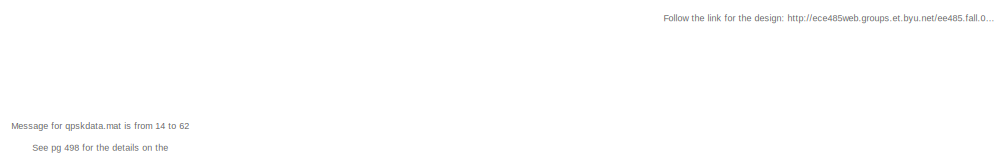
[diagram: root canvas - part 1/3, top left region]
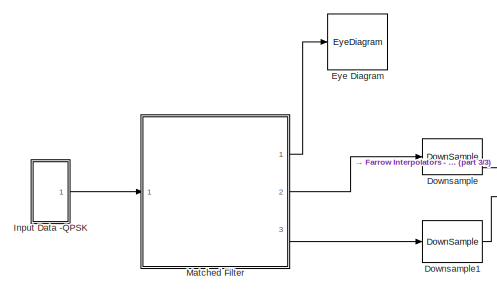
[diagram: root canvas - part 2/3, middle left region]
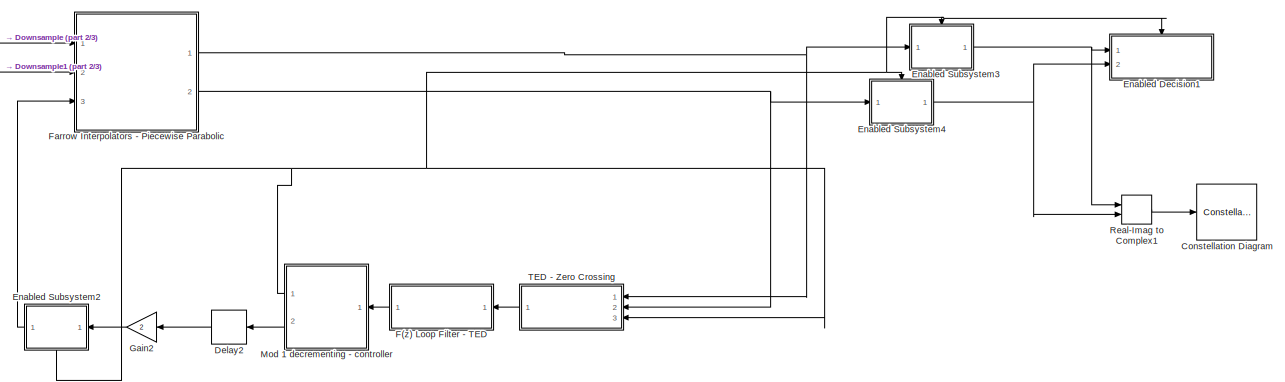
[diagram: root canvas - part 3/3, bottom center region]
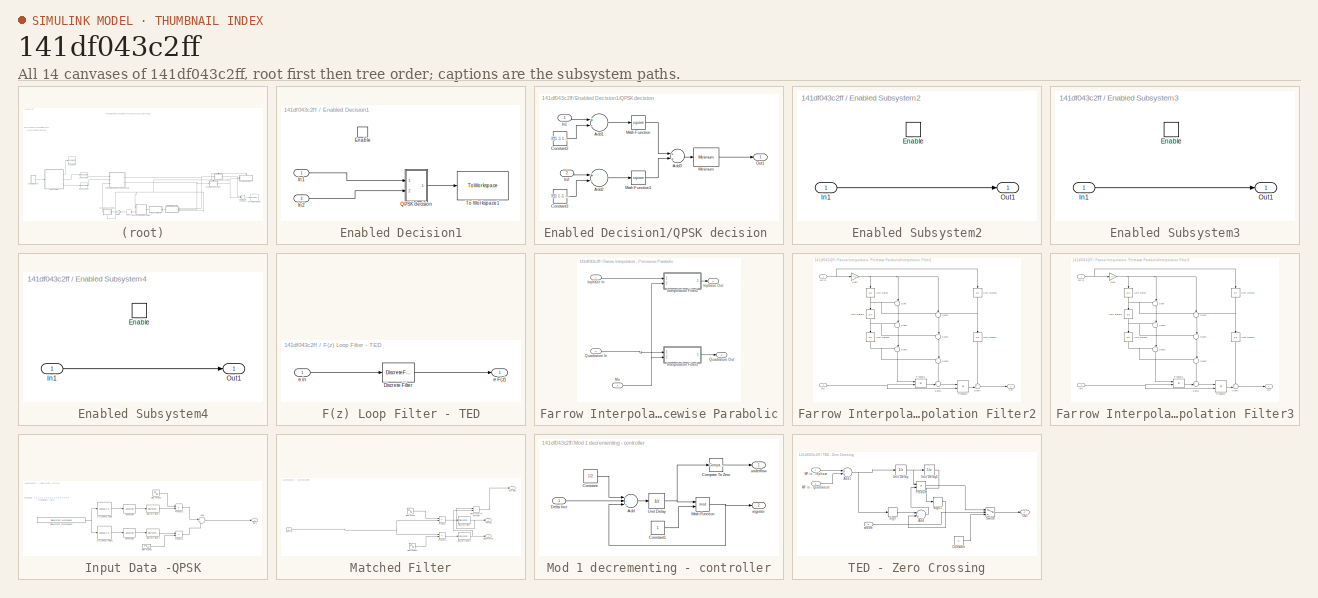
[diagram: thumbnail index - all 14 canvases of the model, root first then tree order]
MODEL slx_141df043c2ff
KIND model
CONFIG AbsTol = auto
CONFIG EnableMultiTasking = on
CONFIG FixedStep = auto
CONFIG MaxStep = auto
CONFIG MinStep = auto
CONFIG RelTol = 1e-3
CONFIG SampleTimeConstraint = Unconstrained
CONFIG Solver = VariableStepAuto
CONFIG SolverName = VariableStepAuto
CONFIG StartTime = 0.0
CONFIG StopTime = (12+133)*8
BLOCK [ConstellationDiagram] Constellation Diagram
  Ports = [1]
  ScopeSpecificationString = comm.scopes.ConstellationDiagramBlockCfg('CurrentConfiguration', extmgr.ConfigurationSet(extmgr.Configuration('Core','General UI',true),extmgr.Configuration('Core','Source UI',true),extmgr.Configuration('Sources','WiredSimulink',true),extmgr.Configuration('Sources','File',false),extmgr.Configuration('Sources','SPTool',false),extmgr.Configuration('Sources','Workspace',false),extmgr.Configuration('S...<+2266ch>
BLOCK [Delay] Delay2
  DelayLength = 1
  InputPortMap = u0
  Ports = [1, 1]
BLOCK [DownSample] Downsample
  InputProcessing = Inherited (this choice will be removed - see release notes)
  N = 16/2
  RateOptions = Allow multirate processing
  phase = 7
BLOCK [DownSample] Downsample1
  InputProcessing = Inherited (this choice will be removed - see release notes)
  N = 16/2
  RateOptions = Allow multirate processing
  phase = 7
BLOCK [SubSystem] Enabled Decision1
  Ports = [2, 0, 1]
  RequestExecContextInheritance = off
  TreatAsAtomicUnit = on
  Variant = off
BLOCK [EnablePort] Enabled Decision1/Enable
  Ports = []
BLOCK [Inport] Enabled Decision1/In1
  IconDisplay = Port number
BLOCK [Inport] Enabled Decision1/In2
  IconDisplay = Port number
  Port = 2
BLOCK [SubSystem] Enabled Decision1/QPSK decision 
  Ports = [2, 1]
  RequestExecContextInheritance = off
  Variant = off
BLOCK [Sum] Enabled Decision1/QPSK decision /Add1
  InputSameDT = off
  Inputs = +-
  OutDataTypeStr = Inherit: Inherit via internal rule
  Ports = [2, 1]
  SaturateOnIntegerOverflow = off
BLOCK [Sum] Enabled Decision1/QPSK decision /Add2
  InputSameDT = off
  Inputs = +-
  OutDataTypeStr = Inherit: Inherit via internal rule
  Ports = [2, 1]
  SaturateOnIntegerOverflow = off
BLOCK [Sum] Enabled Decision1/QPSK decision /Add3
  InputSameDT = off
  OutDataTypeStr = Inherit: Inherit via internal rule
  Ports = [2, 1]
  SaturateOnIntegerOverflow = off
BLOCK [Constant] Enabled Decision1/QPSK decision /Constant2
  Value = 3*[1 -1 1 -1] /sqrt(2)
BLOCK [Constant] Enabled Decision1/QPSK decision /Constant3
  Value = 3*[1 1 -1 -1] /sqrt(2)
BLOCK [Inport] Enabled Decision1/QPSK decision /In1
  IconDisplay = Port number
BLOCK [Inport] Enabled Decision1/QPSK decision /In2
  IconDisplay = Port number
  Port = 2
BLOCK [Math] Enabled Decision1/QPSK decision /Math Function
  Operator = square
  Ports = [1, 1]
BLOCK [Math] Enabled Decision1/QPSK decision /Math Function1
  Operator = square
  Ports = [1, 1]
BLOCK [Reference] Enabled Decision1/QPSK decision /Minimum  REF=dspstat3/Minimum
  Ports = [1, 1]
  SourceBlock = dspstat3/Minimum
  SourceType = Minimum
  UserDataPersistent = on
BLOCK [Outport] Enabled Decision1/QPSK decision /Out1
  IconDisplay = Port number
BLOCK [ToWorkspace] Enabled Decision1/To Workspace1
  FixptAsFi = on
  MaxDataPoints = inf
  Ports = [1]
  SampleTime = -1
  Save2DSignal = 2-D array (concatenate along first dimension)
  VariableName = QPSKbitsT1
BLOCK [SubSystem] Enabled Subsystem2
  Ports = [1, 1, 1]
  RequestExecContextInheritance = off
  TreatAsAtomicUnit = on
  Variant = off
BLOCK [EnablePort] Enabled Subsystem2/Enable
  Ports = []
BLOCK [Inport] Enabled Subsystem2/In1
  IconDisplay = Port number
BLOCK [Outport] Enabled Subsystem2/Out1
  IconDisplay = Port number
BLOCK [SubSystem] Enabled Subsystem3
  Ports = [1, 1, 1]
  RequestExecContextInheritance = off
  TreatAsAtomicUnit = on
  Variant = off
BLOCK [EnablePort] Enabled Subsystem3/Enable
  Ports = []
BLOCK [Inport] Enabled Subsystem3/In1
  IconDisplay = Port number
BLOCK [Outport] Enabled Subsystem3/Out1
  IconDisplay = Port number
BLOCK [SubSystem] Enabled Subsystem4
  Ports = [1, 1, 1]
  RequestExecContextInheritance = off
  TreatAsAtomicUnit = on
  Variant = off
BLOCK [EnablePort] Enabled Subsystem4/Enable
  Ports = []
BLOCK [Inport] Enabled Subsystem4/In1
  IconDisplay = Port number
BLOCK [Outport] Enabled Subsystem4/Out1
  IconDisplay = Port number
BLOCK [EyeDiagram] Eye Diagram
  Ports = [1]
  ScopeSpecificationString = comm.scopes.EyeDiagramBlockCfg('CurrentConfiguration', extmgr.ConfigurationSet(extmgr.Configuration('Core','General UI',true),extmgr.Configuration('Core','Source UI',true),extmgr.Configuration('Sources','WiredSimulink',true),extmgr.Configuration('Sources','File',false),extmgr.Configuration('Sources','Streaming',false),extmgr.Configuration('Sources','SPTool',false),extmgr.Configuration('Sources','W...<+1878ch>
BLOCK [SubSystem] F(z) Loop Filter - TED
  Ports = [1, 1]
  RequestExecContextInheritance = off
  Variant = off
BLOCK [DiscreteFilter] F(z) Loop Filter - TED/Discrete Filter
  Denominator = [1 -1]
  InputPortMap = u0
  Numerator = [(K1+K2) -K1]
  Ports = [1, 1]
BLOCK [Outport] F(z) Loop Filter - TED/e F(z)
  IconDisplay = Port number
BLOCK [Inport] F(z) Loop Filter - TED/e in
  IconDisplay = Port number
BLOCK [SubSystem] Farrow Interpolators - Piecewise Parabolic
  Ports = [3, 2]
  RequestExecContextInheritance = off
  Variant = off
BLOCK [Inport] Farrow Interpolators - Piecewise Parabolic/Inphase In
  IconDisplay = Port number
BLOCK [Outport] Farrow Interpolators - Piecewise Parabolic/Inphase Out
  IconDisplay = Port number
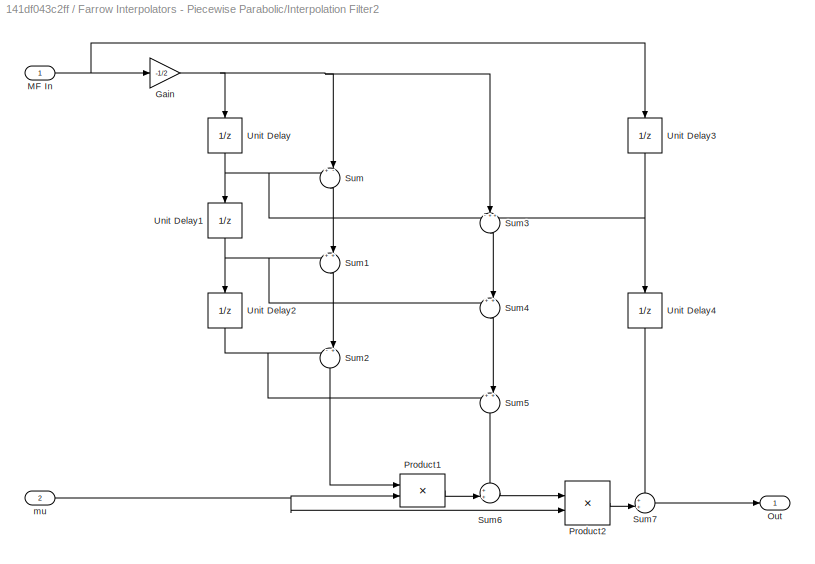
BLOCK [SubSystem] Farrow Interpolators - Piecewise Parabolic/Interpolation Filter2
  Ports = [2, 1]
  RequestExecContextInheritance = off
  Variant = off
BLOCK [Gain] Farrow Interpolators - Piecewise Parabolic/Interpolation Filter2/Gain
  Gain = -1/2
  OutDataTypeStr = Inherit: Inherit via internal rule
  ParamDataTypeStr = Inherit: Inherit via internal rule
  SaturateOnIntegerOverflow = off
BLOCK [Inport] Farrow Interpolators - Piecewise Parabolic/Interpolation Filter2/MF In
  IconDisplay = Port number
BLOCK [Outport] Farrow Interpolators - Piecewise Parabolic/Interpolation Filter2/Out
  IconDisplay = Port number
BLOCK [Product] Farrow Interpolators - Piecewise Parabolic/Interpolation Filter2/Product1
  Ports = [2, 1]
  RndMeth = Floor
BLOCK [Product] Farrow Interpolators - Piecewise Parabolic/Interpolation Filter2/Product2
  Ports = [2, 1]
  RndMeth = Floor
BLOCK [Sum] Farrow Interpolators - Piecewise Parabolic/Interpolation Filter2/Sum
  IconShape = round
  Inputs = +-|
  Ports = [2, 1]
BLOCK [Sum] Farrow Interpolators - Piecewise Parabolic/Interpolation Filter2/Sum1
  IconShape = round
  Inputs = ++|
  Ports = [2, 1]
BLOCK [Sum] Farrow Interpolators - Piecewise Parabolic/Interpolation Filter2/Sum2
  IconShape = round
  Inputs = -+|
  Ports = [2, 1]
BLOCK [Sum] Farrow Interpolators - Piecewise Parabolic/Interpolation Filter2/Sum3
  IconShape = round
  Inputs = -++
  Ports = [3, 1]
BLOCK [Sum] Farrow Interpolators - Piecewise Parabolic/Interpolation Filter2/Sum4
  IconShape = round
  Inputs = ++|
  Ports = [2, 1]
BLOCK [Sum] Farrow Interpolators - Piecewise Parabolic/Interpolation Filter2/Sum5
  IconShape = round
  Inputs = ++|
  Ports = [2, 1]
BLOCK [Sum] Farrow Interpolators - Piecewise Parabolic/Interpolation Filter2/Sum6
  IconShape = round
  Inputs = ++|
  Ports = [2, 1]
BLOCK [Sum] Farrow Interpolators - Piecewise Parabolic/Interpolation Filter2/Sum7
  IconShape = round
  Inputs = ++|
  Ports = [2, 1]
BLOCK [UnitDelay] Farrow Interpolators - Piecewise Parabolic/Interpolation Filter2/Unit Delay
  InputProcessing = Elements as channels (sample based)
  SampleTime = -1
BLOCK [UnitDelay] Farrow Interpolators - Piecewise Parabolic/Interpolation Filter2/Unit Delay1
  InputProcessing = Elements as channels (sample based)
  SampleTime = -1
BLOCK [UnitDelay] Farrow Interpolators - Piecewise Parabolic/Interpolation Filter2/Unit Delay2
  InputProcessing = Elements as channels (sample based)
  SampleTime = -1
BLOCK [UnitDelay] Farrow Interpolators - Piecewise Parabolic/Interpolation Filter2/Unit Delay3
  InputProcessing = Elements as channels (sample based)
  SampleTime = -1
BLOCK [UnitDelay] Farrow Interpolators - Piecewise Parabolic/Interpolation Filter2/Unit Delay4
  InputProcessing = Elements as channels (sample based)
  SampleTime = -1
BLOCK [Inport] Farrow Interpolators - Piecewise Parabolic/Interpolation Filter2/mu
  IconDisplay = Port number
  Port = 2
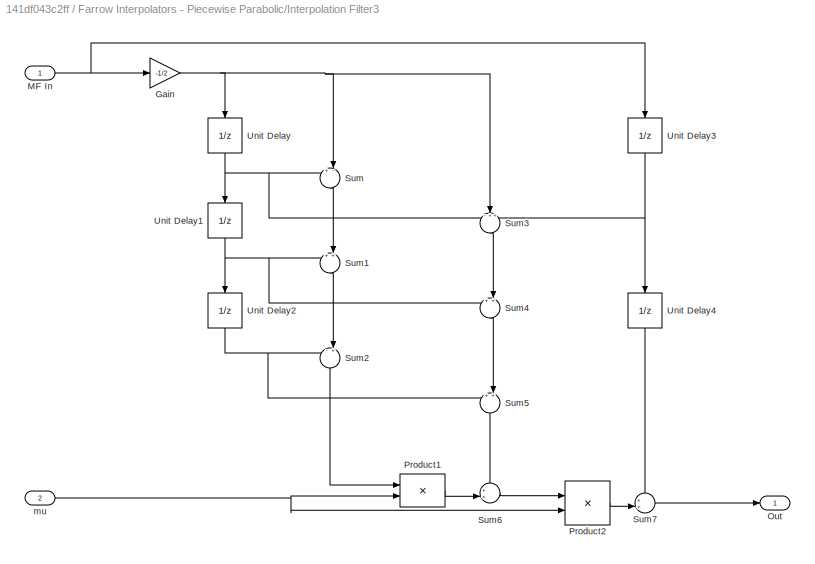
BLOCK [SubSystem] Farrow Interpolators - Piecewise Parabolic/Interpolation Filter3
  Ports = [2, 1]
  RequestExecContextInheritance = off
  Variant = off
BLOCK [Gain] Farrow Interpolators - Piecewise Parabolic/Interpolation Filter3/Gain
  Gain = -1/2
  OutDataTypeStr = Inherit: Inherit via internal rule
  ParamDataTypeStr = Inherit: Inherit via internal rule
  SaturateOnIntegerOverflow = off
BLOCK [Inport] Farrow Interpolators - Piecewise Parabolic/Interpolation Filter3/MF In
  IconDisplay = Port number
BLOCK [Outport] Farrow Interpolators - Piecewise Parabolic/Interpolation Filter3/Out
  IconDisplay = Port number
BLOCK [Product] Farrow Interpolators - Piecewise Parabolic/Interpolation Filter3/Product1
  Ports = [2, 1]
  RndMeth = Floor
BLOCK [Product] Farrow Interpolators - Piecewise Parabolic/Interpolation Filter3/Product2
  Ports = [2, 1]
  RndMeth = Floor
BLOCK [Sum] Farrow Interpolators - Piecewise Parabolic/Interpolation Filter3/Sum
  IconShape = round
  Inputs = +-|
  Ports = [2, 1]
BLOCK [Sum] Farrow Interpolators - Piecewise Parabolic/Interpolation Filter3/Sum1
  IconShape = round
  Inputs = ++|
  Ports = [2, 1]
BLOCK [Sum] Farrow Interpolators - Piecewise Parabolic/Interpolation Filter3/Sum2
  IconShape = round
  Inputs = -+|
  Ports = [2, 1]
BLOCK [Sum] Farrow Interpolators - Piecewise Parabolic/Interpolation Filter3/Sum3
  IconShape = round
  Inputs = -++
  Ports = [3, 1]
BLOCK [Sum] Farrow Interpolators - Piecewise Parabolic/Interpolation Filter3/Sum4
  IconShape = round
  Inputs = ++|
  Ports = [2, 1]
BLOCK [Sum] Farrow Interpolators - Piecewise Parabolic/Interpolation Filter3/Sum5
  IconShape = round
  Inputs = ++|
  Ports = [2, 1]
BLOCK [Sum] Farrow Interpolators - Piecewise Parabolic/Interpolation Filter3/Sum6
  IconShape = round
  Inputs = ++|
  Ports = [2, 1]
BLOCK [Sum] Farrow Interpolators - Piecewise Parabolic/Interpolation Filter3/Sum7
  IconShape = round
  Inputs = ++|
  Ports = [2, 1]
BLOCK [UnitDelay] Farrow Interpolators - Piecewise Parabolic/Interpolation Filter3/Unit Delay
  InputProcessing = Elements as channels (sample based)
  SampleTime = -1
BLOCK [UnitDelay] Farrow Interpolators - Piecewise Parabolic/Interpolation Filter3/Unit Delay1
  InputProcessing = Elements as channels (sample based)
  SampleTime = -1
BLOCK [UnitDelay] Farrow Interpolators - Piecewise Parabolic/Interpolation Filter3/Unit Delay2
  InputProcessing = Elements as channels (sample based)
  SampleTime = -1
BLOCK [UnitDelay] Farrow Interpolators - Piecewise Parabolic/Interpolation Filter3/Unit Delay3
  InputProcessing = Elements as channels (sample based)
  SampleTime = -1
BLOCK [UnitDelay] Farrow Interpolators - Piecewise Parabolic/Interpolation Filter3/Unit Delay4
  InputProcessing = Elements as channels (sample based)
  SampleTime = -1
BLOCK [Inport] Farrow Interpolators - Piecewise Parabolic/Interpolation Filter3/mu
  IconDisplay = Port number
  Port = 2
BLOCK [Inport] Farrow Interpolators - Piecewise Parabolic/Mu
  IconDisplay = Port number
  Port = 3
BLOCK [Inport] Farrow Interpolators - Piecewise Parabolic/Quadrature In
  IconDisplay = Port number
  Port = 2
BLOCK [Outport] Farrow Interpolators - Piecewise Parabolic/Quadrature Out
  IconDisplay = Port number
  Port = 2
BLOCK [Gain] Gain2
  Gain = 2
  OutDataTypeStr = Inherit: Inherit via internal rule
  ParamDataTypeStr = Inherit: Inherit via internal rule
  SaturateOnIntegerOverflow = off
BLOCK [SubSystem] Input Data -QPSK
  Ports = [0, 1]
  RequestExecContextInheritance = off
  Variant = off
BLOCK [Lookup_n-D] Input Data -QPSK/1-D Lookup Table
  BreakpointsForDimension1 = [0 1 2 3]
  InternalRulePriority = Speed
  NumberOfTableDimensions = 1
  Ports = [1, 1]
  RndMeth = Simplest
  Table = [1 -1 1 -1]*3/sqrt(2)
BLOCK [Lookup_n-D] Input Data -QPSK/1-D Lookup Table2
  BreakpointsForDimension1 = [0 1 2 3]
  InternalRulePriority = Speed
  NumberOfTableDimensions = 1
  Ports = [1, 1]
  RndMeth = Simplest
  Table = [1 1 -1 -1]*3/sqrt(2)
BLOCK [Sum] Input Data -QPSK/Add1
  IconShape = round
  InputSameDT = off
  OutDataTypeStr = Inherit: Inherit via internal rule
  Ports = [2, 1]
  SaturateOnIntegerOverflow = off
BLOCK [DiscreteFilter] Input Data -QPSK/Discrete Filter2
  Denominator = [1]
  InputPortMap = u0
  Numerator = rcosine(1,8,'fir/sqrt',0.5,6)
  Ports = [1, 1]
BLOCK [DiscreteFilter] Input Data -QPSK/Discrete Filter3
  Denominator = [1]
  InputPortMap = u0
  Numerator = rcosine(1,8,'fir/sqrt',0.5,6)
  Ports = [1, 1]
BLOCK [Outport] Input Data -QPSK/Out1
  IconDisplay = Port number
BLOCK [Product] Input Data -QPSK/Product2
  InputSameDT = off
  OutDataTypeStr = Inherit: Inherit via internal rule
  Ports = [2, 1]
  RndMeth = Floor
  SaturateOnIntegerOverflow = off
BLOCK [Product] Input Data -QPSK/Product3
  InputSameDT = off
  OutDataTypeStr = Inherit: Inherit via internal rule
  Ports = [2, 1]
  RndMeth = Floor
  SaturateOnIntegerOverflow = off
BLOCK [Reference] Input Data -QPSK/Signal From Workspace1  REF=dspsrcs4/Signal From
Workspace
  Ports = [0, 1]
  SourceBlock = dspsrcs4/Signal From\nWorkspace
  SourceType = Signal From Workspace
BLOCK [Sin] Input Data -QPSK/Sine Wave2
  Amplitude = sqrt(2)
  Frequency = 2*pi/4
  Phase = pi/2
  Ports = [0, 1]
  SampleTime = .5
BLOCK [Sin] Input Data -QPSK/Sine Wave3
  Amplitude = -sqrt(2)
  Frequency = 2*pi/4
  Ports = [0, 1]
  SampleTime = .5
BLOCK [Reference] Input Data -QPSK/Upsample  REF=dspsigops/Upsample
  Ports = [1, 1]
  SourceBlock = dspsigops/Upsample
  SourceType = Upsample
  UserDataPersistent = on
BLOCK [Reference] Input Data -QPSK/Upsample1  REF=dspsigops/Upsample
  Ports = [1, 1]
  SourceBlock = dspsigops/Upsample
  SourceType = Upsample
  UserDataPersistent = on
BLOCK [SubSystem] Matched Filter
  Ports = [1, 3]
  RequestExecContextInheritance = off
  Variant = off
BLOCK [DiscreteFilter] Matched Filter/Discrete Filter
  Denominator = [1]
  InputPortMap = u0
  Numerator = rcosine(1,8,'fir/sqrt',0.5,6)
  Ports = [1, 1]
BLOCK [DiscreteFilter] Matched Filter/Discrete Filter1
  Denominator = [1]
  InputPortMap = u0
  Numerator = rcosine(1,8,'fir/sqrt',0.5,6)
  Ports = [1, 1]
BLOCK [Outport] Matched Filter/Eye Diag
  IconDisplay = Port number
BLOCK [Outport] Matched Filter/Inphase
  IconDisplay = Port number
  Port = 2
BLOCK [Inport] Matched Filter/MF In
  IconDisplay = Port number
BLOCK [Product] Matched Filter/Product
  InputSameDT = off
  OutDataTypeStr = Inherit: Inherit via internal rule
  Ports = [2, 1]
  RndMeth = Floor
  SaturateOnIntegerOverflow = off
BLOCK [Product] Matched Filter/Product1
  InputSameDT = off
  OutDataTypeStr = Inherit: Inherit via internal rule
  Ports = [2, 1]
  RndMeth = Floor
  SaturateOnIntegerOverflow = off
BLOCK [Outport] Matched Filter/Quadrature
  IconDisplay = Port number
  Port = 3
BLOCK [RealImagToComplex] Matched Filter/Real-Imag to Complex
  Ports = [2, 1]
BLOCK [Sin] Matched Filter/Sine Wave
  Amplitude = sqrt(2)
  Frequency = 2*pi/4
  Phase = pi/2
  Ports = [0, 1]
  SampleTime = .5
BLOCK [Sin] Matched Filter/Sine Wave1
  Amplitude = -sqrt(2)
  Frequency = 2*pi/4
  Ports = [0, 1]
  SampleTime = .5
BLOCK [SubSystem] Mod 1 decrementing - controller
  Ports = [1, 2]
  RequestExecContextInheritance = off
  Variant = off
BLOCK [Sum] Mod 1 decrementing - controller/Add
  InputSameDT = off
  Inputs = --+
  OutDataTypeStr = Inherit: Inherit via internal rule
  Ports = [3, 1]
  SaturateOnIntegerOverflow = off
BLOCK [Reference] Mod 1 decrementing - controller/Compare To Zero  REF=simulink/Logic and Bit
Operations/Compare
To Zero
  Ports = [1, 1]
  SourceBlock = simulink/Logic and Bit\nOperations/Compare\nTo Zero
  SourceType = Compare To Zero
BLOCK [Constant] Mod 1 decrementing - controller/Constant
  Value = 1/2
BLOCK [Constant] Mod 1 decrementing - controller/Constant1
BLOCK [Inport] Mod 1 decrementing - controller/Delta Incr
  IconDisplay = Port number
BLOCK [Math] Mod 1 decrementing - controller/Math Function
  Operator = mod
  Ports = [2, 1]
BLOCK [UnitDelay] Mod 1 decrementing - controller/Unit Delay
  InputProcessing = Elements as channels (sample based)
  SampleTime = -1
BLOCK [Outport] Mod 1 decrementing - controller/register
  IconDisplay = Port number
  Port = 2
BLOCK [Outport] Mod 1 decrementing - controller/underflow
  IconDisplay = Port number
BLOCK [RealImagToComplex] Real-Imag to Complex1
  Ports = [2, 1]
BLOCK [SubSystem] TED - Zero Crossing
  Ports = [3, 1]
  RequestExecContextInheritance = off
  Variant = off
BLOCK [Sum] TED - Zero Crossing/Add
  InputSameDT = off
  Inputs = -+
  OutDataTypeStr = Inherit: Inherit via internal rule
  Ports = [2, 1]
  SaturateOnIntegerOverflow = off
BLOCK [Sum] TED - Zero Crossing/Add1
  InputSameDT = off
  OutDataTypeStr = Inherit: Inherit via internal rule
  Ports = [2, 1]
  SaturateOnIntegerOverflow = off
BLOCK [Constant] TED - Zero Crossing/Constant
  Value = 0
BLOCK [Inport] TED - Zero Crossing/MF in - Inphase
  IconDisplay = Port number
BLOCK [Inport] TED - Zero Crossing/MF in - Quadrature
  IconDisplay = Port number
  Port = 2
BLOCK [Outport] TED - Zero Crossing/Out
  IconDisplay = Port number
BLOCK [Product] TED - Zero Crossing/Product
  InputSameDT = off
  OutDataTypeStr = Inherit: Inherit via internal rule
  Ports = [2, 1]
  RndMeth = Floor
  SaturateOnIntegerOverflow = off
BLOCK [Signum] TED - Zero Crossing/Sign
BLOCK [Signum] TED - Zero Crossing/Sign1
BLOCK [Switch] TED - Zero Crossing/Switch
  InputSameDT = off
  Threshold = 0.5
BLOCK [UnitDelay] TED - Zero Crossing/Unit Delay
  InputProcessing = Elements as channels (sample based)
  SampleTime = -1
BLOCK [UnitDelay] TED - Zero Crossing/Unit Delay1
  InputProcessing = Elements as channels (sample based)
  SampleTime = -1
BLOCK [Inport] TED - Zero Crossing/strobe
  IconDisplay = Port number
  Port = 3
ANNOTATION (root): Follow the link for the design: http://ece485web.groups.et.byu.net/ee485.fall.01/simulink/qpsktr/qpsktr.html
ANNOTATION (root): Message for qpskdata.mat is from 14 to 62 See pg 498 for the details on the
ANNOTATION Input Data -QPSK: Message: 1 1 1 1 2 1 0 3 0 2 3 3 0 2 3 2 0 0 translation: *derp
LINE Delay2:1 -> Gain2:1
LINE Downsample1:1 -> Farrow Interpolators - Piecewise Parabolic:2
LINE Downsample:1 -> Farrow Interpolators - Piecewise Parabolic:1
LINE Enabled Decision1/In1:1 -> Enabled Decision1/QPSK decision :1
LINE Enabled Decision1/In2:1 -> Enabled Decision1/QPSK decision :2
LINE Enabled Decision1/QPSK decision /Add1:1 -> Enabled Decision1/QPSK decision /Math Function:1
LINE Enabled Decision1/QPSK decision /Add2:1 -> Enabled Decision1/QPSK decision /Math Function1:1
LINE Enabled Decision1/QPSK decision /Add3:1 -> Enabled Decision1/QPSK decision /Minimum:1
LINE Enabled Decision1/QPSK decision /Constant2:1 -> Enabled Decision1/QPSK decision /Add1:2
LINE Enabled Decision1/QPSK decision /Constant3:1 -> Enabled Decision1/QPSK decision /Add2:2
LINE Enabled Decision1/QPSK decision /In1:1 -> Enabled Decision1/QPSK decision /Add1:1
LINE Enabled Decision1/QPSK decision /In2:1 -> Enabled Decision1/QPSK decision /Add2:1
LINE Enabled Decision1/QPSK decision /Math Function1:1 -> Enabled Decision1/QPSK decision /Add3:2
LINE Enabled Decision1/QPSK decision /Math Function:1 -> Enabled Decision1/QPSK decision /Add3:1
LINE Enabled Decision1/QPSK decision /Minimum:1 -> Enabled Decision1/QPSK decision /Out1:1
LINE Enabled Decision1/QPSK decision :1 -> Enabled Decision1/To Workspace1:1
LINE Enabled Subsystem2/In1:1 -> Enabled Subsystem2/Out1:1
LINE Enabled Subsystem2:1 -> Farrow Interpolators - Piecewise Parabolic:3
LINE Enabled Subsystem3/In1:1 -> Enabled Subsystem3/Out1:1
NET Enabled Subsystem3:1 -> Enabled Decision1:1, Real-Imag to Complex1:1
LINE Enabled Subsystem4/In1:1 -> Enabled Subsystem4/Out1:1
NET Enabled Subsystem4:1 -> Enabled Decision1:2, Real-Imag to Complex1:2
LINE F(z) Loop Filter - TED/Discrete Filter:1 -> F(z) Loop Filter - TED/e F(z):1
LINE F(z) Loop Filter - TED/e in:1 -> F(z) Loop Filter - TED/Discrete Filter:1
LINE F(z) Loop Filter - TED:1 -> Mod 1 decrementing - controller:1
LINE Farrow Interpolators - Piecewise Parabolic/Inphase In:1 -> Farrow Interpolators - Piecewise Parabolic/Interpolation Filter2:1
NET Farrow Interpolators - Piecewise Parabolic/Interpolation Filter2/Gain:1 -> Farrow Interpolators - Piecewise Parabolic/Interpolation Filter2/Sum3:2, Farrow Interpolators - Piecewise Parabolic/Interpolation Filter2/Sum:2, Farrow Interpolators - Piecewise Parabolic/Interpolation Filter2/Unit Delay:1
NET Farrow Interpolators - Piecewise Parabolic/Interpolation Filter2/MF In:1 -> Farrow Interpolators - Piecewise Parabolic/Interpolation Filter2/Gain:1, Farrow Interpolators - Piecewise Parabolic/Interpolation Filter2/Unit Delay3:1
LINE Farrow Interpolators - Piecewise Parabolic/Interpolation Filter2/Product1:1 -> Farrow Interpolators - Piecewise Parabolic/Interpolation Filter2/Sum6:2
LINE Farrow Interpolators - Piecewise Parabolic/Interpolation Filter2/Product2:1 -> Farrow Interpolators - Piecewise Parabolic/Interpolation Filter2/Sum7:2
LINE Farrow Interpolators - Piecewise Parabolic/Interpolation Filter2/Sum1:1 -> Farrow Interpolators - Piecewise Parabolic/Interpolation Filter2/Sum2:2
LINE Farrow Interpolators - Piecewise Parabolic/Interpolation Filter2/Sum2:1 -> Farrow Interpolators - Piecewise Parabolic/Interpolation Filter2/Product1:1
LINE Farrow Interpolators - Piecewise Parabolic/Interpolation Filter2/Sum3:1 -> Farrow Interpolators - Piecewise Parabolic/Interpolation Filter2/Sum4:2
LINE Farrow Interpolators - Piecewise Parabolic/Interpolation Filter2/Sum4:1 -> Farrow Interpolators - Piecewise Parabolic/Interpolation Filter2/Sum5:2
LINE Farrow Interpolators - Piecewise Parabolic/Interpolation Filter2/Sum5:1 -> Farrow Interpolators - Piecewise Parabolic/Interpolation Filter2/Sum6:1
LINE Farrow Interpolators - Piecewise Parabolic/Interpolation Filter2/Sum6:1 -> Farrow Interpolators - Piecewise Parabolic/Interpolation Filter2/Product2:1
LINE Farrow Interpolators - Piecewise Parabolic/Interpolation Filter2/Sum7:1 -> Farrow Interpolators - Piecewise Parabolic/Interpolation Filter2/Out:1
LINE Farrow Interpolators - Piecewise Parabolic/Interpolation Filter2/Sum:1 -> Farrow Interpolators - Piecewise Parabolic/Interpolation Filter2/Sum1:2
NET Farrow Interpolators - Piecewise Parabolic/Interpolation Filter2/Unit Delay1:1 -> Farrow Interpolators - Piecewise Parabolic/Interpolation Filter2/Sum1:1, Farrow Interpolators - Piecewise Parabolic/Interpolation Filter2/Sum4:1, Farrow Interpolators - Piecewise Parabolic/Interpolation Filter2/Unit Delay2:1
NET Farrow Interpolators - Piecewise Parabolic/Interpolation Filter2/Unit Delay2:1 -> Farrow Interpolators - Piecewise Parabolic/Interpolation Filter2/Sum2:1, Farrow Interpolators - Piecewise Parabolic/Interpolation Filter2/Sum5:1
NET Farrow Interpolators - Piecewise Parabolic/Interpolation Filter2/Unit Delay3:1 -> Farrow Interpolators - Piecewise Parabolic/Interpolation Filter2/Sum3:3, Farrow Interpolators - Piecewise Parabolic/Interpolation Filter2/Unit Delay4:1
LINE Farrow Interpolators - Piecewise Parabolic/Interpolation Filter2/Unit Delay4:1 -> Farrow Interpolators - Piecewise Parabolic/Interpolation Filter2/Sum7:1
NET Farrow Interpolators - Piecewise Parabolic/Interpolation Filter2/Unit Delay:1 -> Farrow Interpolators - Piecewise Parabolic/Interpolation Filter2/Sum3:1, Farrow Interpolators - Piecewise Parabolic/Interpolation Filter2/Sum:1, Farrow Interpolators - Piecewise Parabolic/Interpolation Filter2/Unit Delay1:1
NET Farrow Interpolators - Piecewise Parabolic/Interpolation Filter2/mu:1 -> Farrow Interpolators - Piecewise Parabolic/Interpolation Filter2/Product1:2, Farrow Interpolators - Piecewise Parabolic/Interpolation Filter2/Product2:2
LINE Farrow Interpolators - Piecewise Parabolic/Interpolation Filter2:1 -> Farrow Interpolators - Piecewise Parabolic/Inphase Out:1
NET Farrow Interpolators - Piecewise Parabolic/Interpolation Filter3/Gain:1 -> Farrow Interpolators - Piecewise Parabolic/Interpolation Filter3/Sum3:2, Farrow Interpolators - Piecewise Parabolic/Interpolation Filter3/Sum:2, Farrow Interpolators - Piecewise Parabolic/Interpolation Filter3/Unit Delay:1
NET Farrow Interpolators - Piecewise Parabolic/Interpolation Filter3/MF In:1 -> Farrow Interpolators - Piecewise Parabolic/Interpolation Filter3/Gain:1, Farrow Interpolators - Piecewise Parabolic/Interpolation Filter3/Unit Delay3:1
LINE Farrow Interpolators - Piecewise Parabolic/Interpolation Filter3/Product1:1 -> Farrow Interpolators - Piecewise Parabolic/Interpolation Filter3/Sum6:2
LINE Farrow Interpolators - Piecewise Parabolic/Interpolation Filter3/Product2:1 -> Farrow Interpolators - Piecewise Parabolic/Interpolation Filter3/Sum7:2
LINE Farrow Interpolators - Piecewise Parabolic/Interpolation Filter3/Sum1:1 -> Farrow Interpolators - Piecewise Parabolic/Interpolation Filter3/Sum2:2
LINE Farrow Interpolators - Piecewise Parabolic/Interpolation Filter3/Sum2:1 -> Farrow Interpolators - Piecewise Parabolic/Interpolation Filter3/Product1:1
LINE Farrow Interpolators - Piecewise Parabolic/Interpolation Filter3/Sum3:1 -> Farrow Interpolators - Piecewise Parabolic/Interpolation Filter3/Sum4:2
LINE Farrow Interpolators - Piecewise Parabolic/Interpolation Filter3/Sum4:1 -> Farrow Interpolators - Piecewise Parabolic/Interpolation Filter3/Sum5:2
LINE Farrow Interpolators - Piecewise Parabolic/Interpolation Filter3/Sum5:1 -> Farrow Interpolators - Piecewise Parabolic/Interpolation Filter3/Sum6:1
LINE Farrow Interpolators - Piecewise Parabolic/Interpolation Filter3/Sum6:1 -> Farrow Interpolators - Piecewise Parabolic/Interpolation Filter3/Product2:1
LINE Farrow Interpolators - Piecewise Parabolic/Interpolation Filter3/Sum7:1 -> Farrow Interpolators - Piecewise Parabolic/Interpolation Filter3/Out:1
LINE Farrow Interpolators - Piecewise Parabolic/Interpolation Filter3/Sum:1 -> Farrow Interpolators - Piecewise Parabolic/Interpolation Filter3/Sum1:2
NET Farrow Interpolators - Piecewise Parabolic/Interpolation Filter3/Unit Delay1:1 -> Farrow Interpolators - Piecewise Parabolic/Interpolation Filter3/Sum1:1, Farrow Interpolators - Piecewise Parabolic/Interpolation Filter3/Sum4:1, Farrow Interpolators - Piecewise Parabolic/Interpolation Filter3/Unit Delay2:1
NET Farrow Interpolators - Piecewise Parabolic/Interpolation Filter3/Unit Delay2:1 -> Farrow Interpolators - Piecewise Parabolic/Interpolation Filter3/Sum2:1, Farrow Interpolators - Piecewise Parabolic/Interpolation Filter3/Sum5:1
NET Farrow Interpolators - Piecewise Parabolic/Interpolation Filter3/Unit Delay3:1 -> Farrow Interpolators - Piecewise Parabolic/Interpolation Filter3/Sum3:3, Farrow Interpolators - Piecewise Parabolic/Interpolation Filter3/Unit Delay4:1
LINE Farrow Interpolators - Piecewise Parabolic/Interpolation Filter3/Unit Delay4:1 -> Farrow Interpolators - Piecewise Parabolic/Interpolation Filter3/Sum7:1
NET Farrow Interpolators - Piecewise Parabolic/Interpolation Filter3/Unit Delay:1 -> Farrow Interpolators - Piecewise Parabolic/Interpolation Filter3/Sum3:1, Farrow Interpolators - Piecewise Parabolic/Interpolation Filter3/Sum:1, Farrow Interpolators - Piecewise Parabolic/Interpolation Filter3/Unit Delay1:1
NET Farrow Interpolators - Piecewise Parabolic/Interpolation Filter3/mu:1 -> Farrow Interpolators - Piecewise Parabolic/Interpolation Filter3/Product1:2, Farrow Interpolators - Piecewise Parabolic/Interpolation Filter3/Product2:2
LINE Farrow Interpolators - Piecewise Parabolic/Interpolation Filter3:1 -> Farrow Interpolators - Piecewise Parabolic/Quadrature Out:1
NET Farrow Interpolators - Piecewise Parabolic/Mu:1 -> Farrow Interpolators - Piecewise Parabolic/Interpolation Filter2:2, Farrow Interpolators - Piecewise Parabolic/Interpolation Filter3:2
LINE Farrow Interpolators - Piecewise Parabolic/Quadrature In:1 -> Farrow Interpolators - Piecewise Parabolic/Interpolation Filter3:1
NET Farrow Interpolators - Piecewise Parabolic:1 -> Enabled Subsystem3:1, TED - Zero Crossing:1
NET Farrow Interpolators - Piecewise Parabolic:2 -> Enabled Subsystem4:1, TED - Zero Crossing:2
LINE Gain2:1 -> Enabled Subsystem2:1
LINE Input Data -QPSK/1-D Lookup Table2:1 -> Input Data -QPSK/Upsample1:1
LINE Input Data -QPSK/1-D Lookup Table:1 -> Input Data -QPSK/Upsample:1
LINE Input Data -QPSK/Add1:1 -> Input Data -QPSK/Out1:1
LINE Input Data -QPSK/Discrete Filter2:1 -> Input Data -QPSK/Product2:2
LINE Input Data -QPSK/Discrete Filter3:1 -> Input Data -QPSK/Product3:1
LINE Input Data -QPSK/Product2:1 -> Input Data -QPSK/Add1:1
LINE Input Data -QPSK/Product3:1 -> Input Data -QPSK/Add1:2
NET Input Data -QPSK/Signal From Workspace1:1 -> Input Data -QPSK/1-D Lookup Table2:1, Input Data -QPSK/1-D Lookup Table:1
LINE Input Data -QPSK/Sine Wave2:1 -> Input Data -QPSK/Product2:1
LINE Input Data -QPSK/Sine Wave3:1 -> Input Data -QPSK/Product3:2
LINE Input Data -QPSK/Upsample1:1 -> Input Data -QPSK/Discrete Filter3:1
LINE Input Data -QPSK/Upsample:1 -> Input Data -QPSK/Discrete Filter2:1
LINE Input Data -QPSK:1 -> Matched Filter:1
NET Matched Filter/Discrete Filter1:1 -> Matched Filter/Quadrature:1, Matched Filter/Real-Imag to Complex:2
NET Matched Filter/Discrete Filter:1 -> Matched Filter/Inphase:1, Matched Filter/Real-Imag to Complex:1
NET Matched Filter/MF In:1 -> Matched Filter/Product1:1, Matched Filter/Product:2
LINE Matched Filter/Product1:1 -> Matched Filter/Discrete Filter1:1
LINE Matched Filter/Product:1 -> Matched Filter/Discrete Filter:1
LINE Matched Filter/Real-Imag to Complex:1 -> Matched Filter/Eye Diag:1
LINE Matched Filter/Sine Wave1:1 -> Matched Filter/Product1:2
LINE Matched Filter/Sine Wave:1 -> Matched Filter/Product:1
LINE Matched Filter:1 -> Eye Diagram:1
LINE Matched Filter:2 -> Downsample:1
LINE Matched Filter:3 -> Downsample1:1
LINE Mod 1 decrementing - controller/Add:1 -> Mod 1 decrementing - controller/Unit Delay:1
LINE Mod 1 decrementing - controller/Compare To Zero:1 -> Mod 1 decrementing - controller/underflow:1
LINE Mod 1 decrementing - controller/Constant1:1 -> Mod 1 decrementing - controller/Math Function:2
LINE Mod 1 decrementing - controller/Constant:1 -> Mod 1 decrementing - controller/Add:1
LINE Mod 1 decrementing - controller/Delta Incr:1 -> Mod 1 decrementing - controller/Add:2
NET Mod 1 decrementing - controller/Math Function:1 -> Mod 1 decrementing - controller/Add:3, Mod 1 decrementing - controller/register:1
NET Mod 1 decrementing - controller/Unit Delay:1 -> Mod 1 decrementing - controller/Compare To Zero:1, Mod 1 decrementing - controller/Math Function:1
NET Mod 1 decrementing - controller:1 -> Enabled Decision1:enable, Enabled Subsystem2:enable, Enabled Subsystem3:enable, Enabled Subsystem4:enable, TED - Zero Crossing:3
LINE Mod 1 decrementing - controller:2 -> Delay2:1
LINE Real-Imag to Complex1:1 -> Constellation Diagram:1
NET TED - Zero Crossing/Add1:1 -> TED - Zero Crossing/Sign:1, TED - Zero Crossing/Unit Delay:1
LINE TED - Zero Crossing/Add:1 -> TED - Zero Crossing/Product:2
LINE TED - Zero Crossing/Constant:1 -> TED - Zero Crossing/Switch:3
LINE TED - Zero Crossing/MF in - Inphase:1 -> TED - Zero Crossing/Add1:1
LINE TED - Zero Crossing/MF in - Quadrature:1 -> TED - Zero Crossing/Add1:2
LINE TED - Zero Crossing/Product:1 -> TED - Zero Crossing/Switch:1
LINE TED - Zero Crossing/Sign1:1 -> TED - Zero Crossing/Add:2
LINE TED - Zero Crossing/Sign:1 -> TED - Zero Crossing/Add:1
LINE TED - Zero Crossing/Switch:1 -> TED - Zero Crossing/Out:1
LINE TED - Zero Crossing/Unit Delay1:1 -> TED - Zero Crossing/Sign1:1
NET TED - Zero Crossing/Unit Delay:1 -> TED - Zero Crossing/Product:1, TED - Zero Crossing/Unit Delay1:1
LINE TED - Zero Crossing/strobe:1 -> TED - Zero Crossing/Switch:2
LINE TED - Zero Crossing:1 -> F(z) Loop Filter - TED:1
note: NET lines group one-source signal fan-out (src -> all destinations, sorted); 1:1 wires keep LINE
